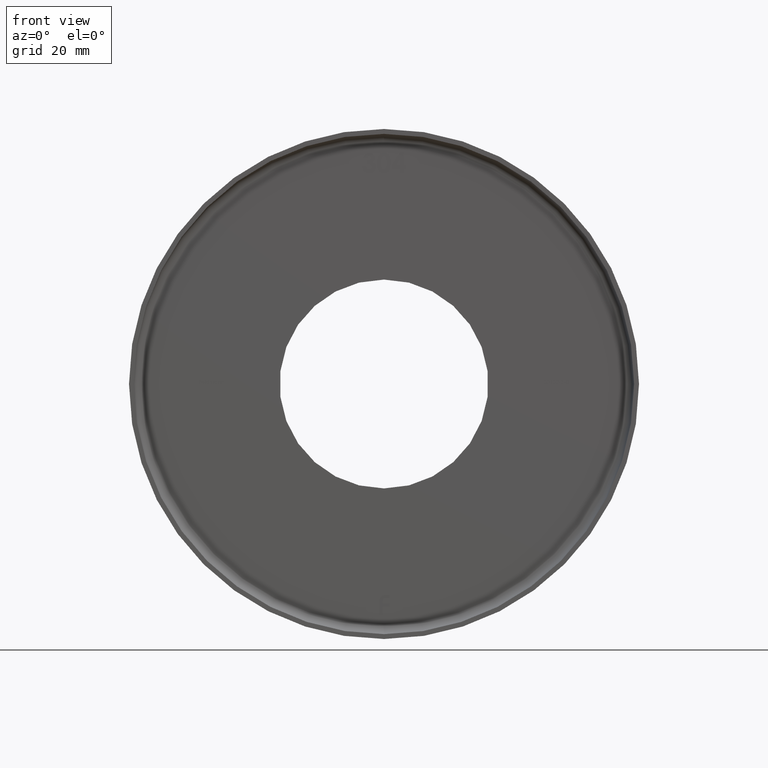
[diagram: clean part render]
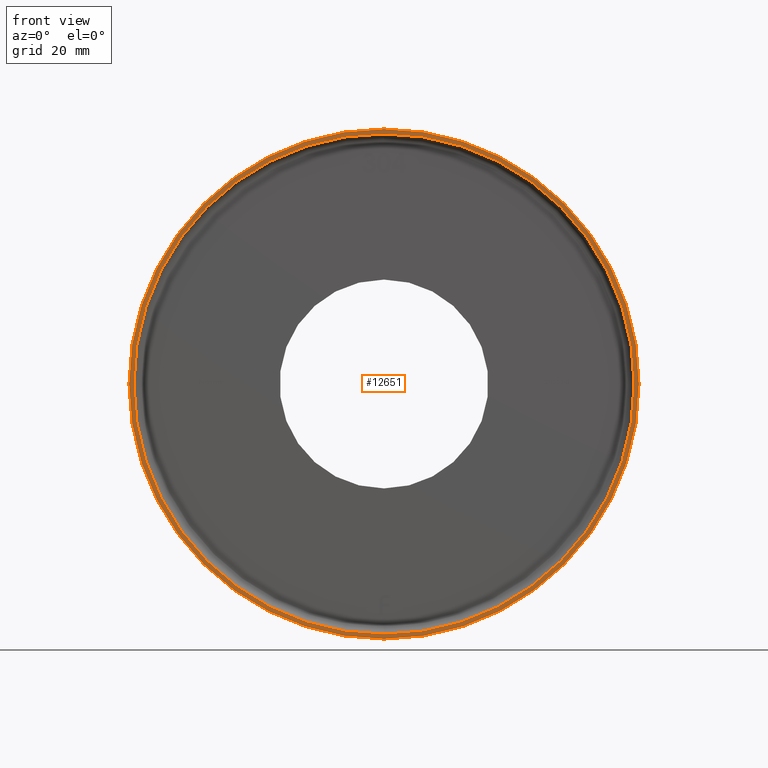
[diagram: same view with one face highlighted and labeled with its STEP entity id]
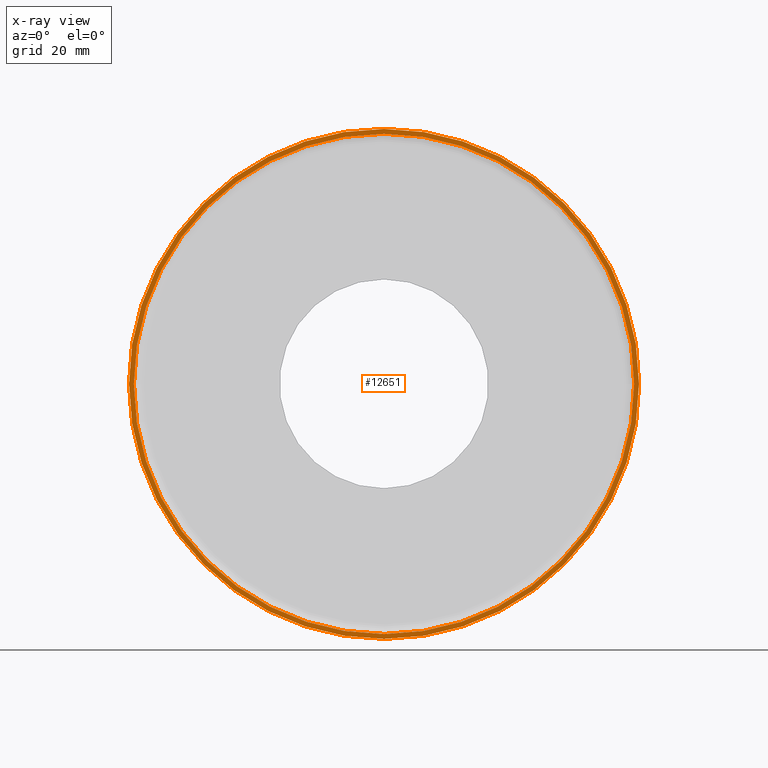
[diagram: x-ray of the same camera — body ghosted, the highlighted face saturated]
A machine part, front view. The second image highlights one B-rep face of the part: STEP entity #12651.
The next image is the same camera in x-ray: the body ghosted, the highlighted face saturated — about 0% of this face is hidden behind the body in this view.
In plain terms, the highlighted planar face has unit normal (0, -1, -0).
Its self-contained STEP definition (entity closure, byte-faithful):
#151 = CARTESIAN_POINT ( 'NONE',  ( 0.000000000000000000, 0.000000000000000000, 0.000000000000000000 ) ) ;
#188 = ORIENTED_EDGE ( 'NONE', *, *, #12244, .F. ) ;
#260 = PLANE ( 'NONE',  #10052 ) ;
#936 = VERTEX_POINT ( 'NONE', #3078 ) ;
#2034 = DIRECTION ( 'NONE',  ( -0.000000000000000000, -1.000000000000000000, -0.000000000000000000 ) ) ;
#2189 = CARTESIAN_POINT ( 'NONE',  ( 0.000000000000000000, -1.224646799147353207E-16, 0.000000000000000000 ) ) ;
#2279 = DIRECTION ( 'NONE',  ( 0.000000000000000000, 0.000000000000000000, -1.000000000000000000 ) ) ;
#2473 = AXIS2_PLACEMENT_3D ( 'NONE', #2189, #9387, #2279 ) ;
#3078 = CARTESIAN_POINT ( 'NONE',  ( 0.000000000000000000, -1.224646799147353207E-16, -51.50000000000000711 ) ) ;
#3265 = EDGE_LOOP ( 'NONE', ( #6835, #9173 ) ) ;
#3977 = CARTESIAN_POINT ( 'NONE',  ( 6.429395695523604744E-15, 0.000000000000000000, 52.50000000000000711 ) ) ;
#4056 = CARTESIAN_POINT ( 'NONE',  ( 0.000000000000000000, -1.224646799147353207E-16, 0.000000000000000000 ) ) ;
#4990 = DIRECTION ( 'NONE',  ( -0.000000000000000000, -1.000000000000000000, -0.000000000000000000 ) ) ;
#5300 = DIRECTION ( 'NONE',  ( -0.000000000000000000, -1.000000000000000000, -0.000000000000000000 ) ) ;
#5734 = VERTEX_POINT ( 'NONE', #7980 ) ;
#5970 = ORIENTED_EDGE ( 'NONE', *, *, #12720, .F. ) ;
#6246 = VERTEX_POINT ( 'NONE', #3977 ) ;
#6372 = CIRCLE ( 'NONE', #8619, 51.50000000000000711 ) ;
#6428 = DIRECTION ( 'NONE',  ( 0.000000000000000000, 0.000000000000000000, -1.000000000000000000 ) ) ;
#6535 = DIRECTION ( 'NONE',  ( 0.000000000000000000, 0.000000000000000000, -1.000000000000000000 ) ) ;
#6835 = ORIENTED_EDGE ( 'NONE', *, *, #8080, .T. ) ;
#7357 = CIRCLE ( 'NONE', #12983, 52.50000000000000711 ) ;
#7498 = DIRECTION ( 'NONE',  ( 0.000000000000000000, 0.000000000000000000, -1.000000000000000000 ) ) ;
#7980 = CARTESIAN_POINT ( 'NONE',  ( 0.000000000000000000, 0.000000000000000000, -52.50000000000000711 ) ) ;
#8080 = EDGE_CURVE ( 'NONE', #5734, #6246, #7357, .T. ) ;
#8619 = AXIS2_PLACEMENT_3D ( 'NONE', #4056, #5300, #6535 ) ;
#8847 = FACE_BOUND ( 'NONE', #12114, .T. ) ;
#9173 = ORIENTED_EDGE ( 'NONE', *, *, #15163, .T. ) ;
#9387 = DIRECTION ( 'NONE',  ( -0.000000000000000000, -1.000000000000000000, -0.000000000000000000 ) ) ;
#9618 = FACE_OUTER_BOUND ( 'NONE', #3265, .T. ) ;
#10008 = CARTESIAN_POINT ( 'NONE',  ( 51.50000000000000711, -6.123233995736766036E-17, 0.000000000000000000 ) ) ;
#10052 = AXIS2_PLACEMENT_3D ( 'NONE', #10008, #11221, #6428 ) ;
#10558 = DIRECTION ( 'NONE',  ( 0.000000000000000000, 0.000000000000000000, -1.000000000000000000 ) ) ;
#11221 = DIRECTION ( 'NONE',  ( 0.000000000000000000, -1.000000000000000000, -0.000000000000000000 ) ) ;
#11732 = CARTESIAN_POINT ( 'NONE',  ( 0.000000000000000000, 0.000000000000000000, 0.000000000000000000 ) ) ;
#12087 = CIRCLE ( 'NONE', #2473, 51.50000000000000711 ) ;
#12114 = EDGE_LOOP ( 'NONE', ( #188, #5970 ) ) ;
#12244 = EDGE_CURVE ( 'NONE', #936, #12574, #12087, .T. ) ;
#12574 = VERTEX_POINT ( 'NONE', #14733 ) ;
#12651 = ADVANCED_FACE ( 'NONE', ( #9618, #8847 ), #260, .T. ) ;
#12720 = EDGE_CURVE ( 'NONE', #12574, #936, #6372, .T. ) ;
#12983 = AXIS2_PLACEMENT_3D ( 'NONE', #151, #4990, #7498 ) ;
#13714 = AXIS2_PLACEMENT_3D ( 'NONE', #11732, #2034, #10558 ) ;
#14733 = CARTESIAN_POINT ( 'NONE',  ( 6.306931015608869596E-15, -1.224646799147353207E-16, 51.50000000000000711 ) ) ;
#15075 = CIRCLE ( 'NONE', #13714, 52.50000000000000711 ) ;
#15163 = EDGE_CURVE ( 'NONE', #6246, #5734, #15075, .T. ) ;